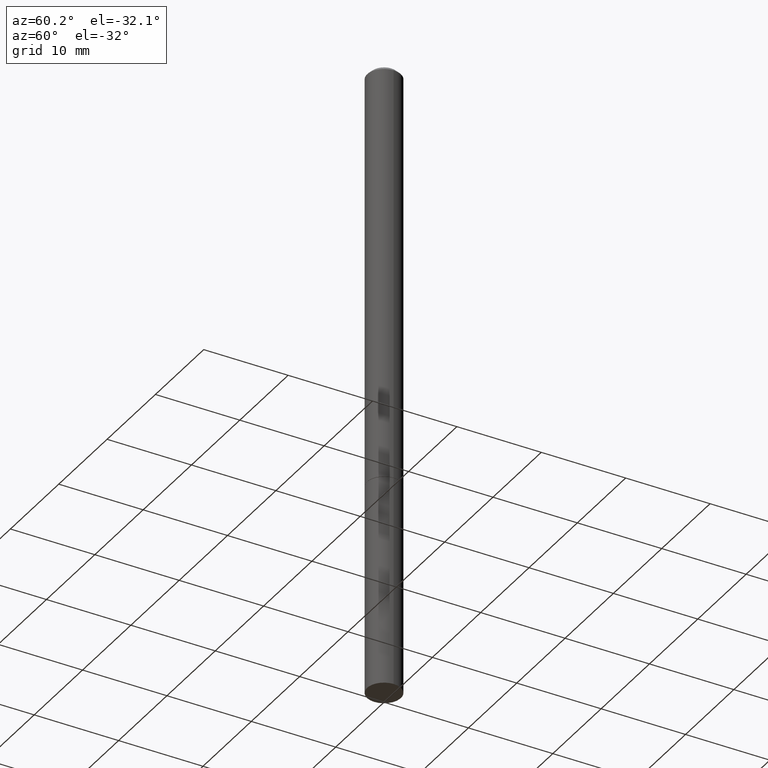
[diagram: clean part render]
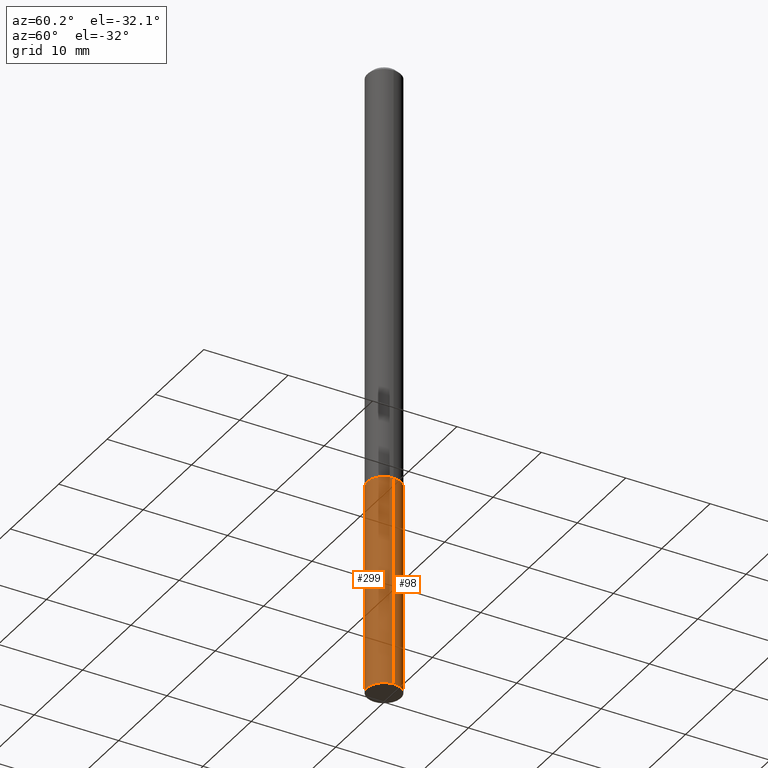
[diagram: same view with one multi-face feature highlighted, each face labeled with its STEP entity id]
A machine part, auxiliary view. The highlighted faces form ONE feature: a constant-radius fillet chain: 2 tangent blend faces with common blend radius 2.0002 mm. The faces share edges in the B-rep.
Their STEP definitions:
[1] entity #98 (Cylinder):
#1 = EDGE_LOOP ( 'NONE', ( #80, #179, #140, #161 ) ) ;
#10 = CARTESIAN_POINT ( 'NONE',  ( -0.07875000000000000056, 5.595524044110789003E-16, -3.873661383575737792E-30 ) ) ;
#12 = CARTESIAN_POINT ( 'NONE',  ( 4.813905344975440714E-29, -6.872981015512730918E-15, -1.968499999999999694 ) ) ;
#13 = DIRECTION ( 'NONE',  ( -2.445468806185136877E-29, 3.491481338843145188E-15, 1.000000000000000000 ) ) ;
#32 = DIRECTION ( 'NONE',  ( 1.000000000000000000, -6.982962677686265922E-15, 4.876176775795935232E-29 ) ) ;
#40 = CARTESIAN_POINT ( 'NONE',  ( -0.07875000000000000056, -8.031761152013305527E-15, -1.968499999999999694 ) ) ;
#55 = CIRCLE ( 'NONE', #358, 0.07875000000000000056 ) ;
#66 = CARTESIAN_POINT ( 'NONE',  ( -0.07875000000000000056, -8.031761152013305527E-15, -2.952799999999999869 ) ) ;
#71 = VECTOR ( 'NONE', #168, 39.37007874015748143 ) ;
#80 = ORIENTED_EDGE ( 'NONE', *, *, #197, .T. ) ;
#89 = DIRECTION ( 'NONE',  ( -2.445468806185136597E-29, 3.491481338843145583E-15, 1.000000000000000000 ) ) ;
#92 = DIRECTION ( 'NONE',  ( -2.445468806185136597E-29, 3.491481338843145583E-15, 1.000000000000000000 ) ) ;
#98 = ADVANCED_FACE ( 'NONE', ( #144 ), #117, .T. ) ;
#108 = VECTOR ( 'NONE', #13, 39.37007874015748143 ) ;
#111 = VERTEX_POINT ( 'NONE', #230 ) ;
#117 = CYLINDRICAL_SURFACE ( 'NONE', #166, 0.07875000000000000056 ) ;
#140 = ORIENTED_EDGE ( 'NONE', *, *, #349, .F. ) ;
#142 = CARTESIAN_POINT ( 'NONE',  ( 0.000000000000000000, 0.000000000000000000, 0.000000000000000000 ) ) ;
#144 = FACE_OUTER_BOUND ( 'NONE', #1, .T. ) ;
#148 = DIRECTION ( 'NONE',  ( 1.000000000000000000, -6.982962677686261977E-15, 0.000000000000000000 ) ) ;
#161 = ORIENTED_EDGE ( 'NONE', *, *, #285, .F. ) ;
#165 = VERTEX_POINT ( 'NONE', #198 ) ;
#166 = AXIS2_PLACEMENT_3D ( 'NONE', #142, #170, #32 ) ;
#168 = DIRECTION ( 'NONE',  ( -2.445468806185136877E-29, 3.491481338843145188E-15, 1.000000000000000000 ) ) ;
#170 = DIRECTION ( 'NONE',  ( -2.445468806185136597E-29, 3.491481338843145583E-15, 1.000000000000000000 ) ) ;
#171 = CIRCLE ( 'NONE', #191, 0.07875000000000000056 ) ;
#179 = ORIENTED_EDGE ( 'NONE', *, *, #237, .T. ) ;
#191 = AXIS2_PLACEMENT_3D ( 'NONE', #12, #92, #148 ) ;
#196 = DIRECTION ( 'NONE',  ( 1.000000000000000000, -6.982962677686261977E-15, 0.000000000000000000 ) ) ;
#197 = EDGE_CURVE ( 'NONE', #111, #226, #55, .T. ) ;
#198 = CARTESIAN_POINT ( 'NONE',  ( 0.07875000000000000056, -7.422889326380523475E-15, -1.968499999999999694 ) ) ;
#226 = VERTEX_POINT ( 'NONE', #66 ) ;
#230 = CARTESIAN_POINT ( 'NONE',  ( 0.07875000000000000056, -1.085955440820383187E-14, -2.952799999999999869 ) ) ;
#237 = EDGE_CURVE ( 'NONE', #226, #295, #264, .T. ) ;
#264 = LINE ( 'NONE', #10, #71 ) ;
#267 = LINE ( 'NONE', #350, #108 ) ;
#285 = EDGE_CURVE ( 'NONE', #111, #165, #267, .T. ) ;
#295 = VERTEX_POINT ( 'NONE', #40 ) ;
#345 = CARTESIAN_POINT ( 'NONE',  ( 7.220980290903470182E-29, -1.030964609733603853E-14, -2.952799999999999869 ) ) ;
#349 = EDGE_CURVE ( 'NONE', #165, #295, #171, .T. ) ;
#350 = CARTESIAN_POINT ( 'NONE',  ( 0.07875000000000000056, -5.499083108677934443E-16, 3.839989210939299016E-30 ) ) ;
#358 = AXIS2_PLACEMENT_3D ( 'NONE', #345, #89, #196 ) ;
[2] entity #299 (Cylinder):
#4 = DIRECTION ( 'NONE',  ( -2.445468806185136597E-29, 3.491481338843145583E-15, 1.000000000000000000 ) ) ;
#10 = CARTESIAN_POINT ( 'NONE',  ( -0.07875000000000000056, 5.595524044110789003E-16, -3.873661383575737792E-30 ) ) ;
#13 = DIRECTION ( 'NONE',  ( -2.445468806185136877E-29, 3.491481338843145188E-15, 1.000000000000000000 ) ) ;
#14 = DIRECTION ( 'NONE',  ( -2.445468806185136597E-29, 3.491481338843145583E-15, 1.000000000000000000 ) ) ;
#27 = EDGE_LOOP ( 'NONE', ( #149, #45, #297, #227 ) ) ;
#36 = CARTESIAN_POINT ( 'NONE',  ( 4.813905344975440714E-29, -6.872981015512730918E-15, -1.968499999999999694 ) ) ;
#40 = CARTESIAN_POINT ( 'NONE',  ( -0.07875000000000000056, -8.031761152013305527E-15, -1.968499999999999694 ) ) ;
#44 = DIRECTION ( 'NONE',  ( 1.000000000000000000, -6.982962677686265922E-15, 4.876176775795935232E-29 ) ) ;
#45 = ORIENTED_EDGE ( 'NONE', *, *, #221, .T. ) ;
#47 = CARTESIAN_POINT ( 'NONE',  ( 0.000000000000000000, 0.000000000000000000, 0.000000000000000000 ) ) ;
#66 = CARTESIAN_POINT ( 'NONE',  ( -0.07875000000000000056, -8.031761152013305527E-15, -2.952799999999999869 ) ) ;
#71 = VECTOR ( 'NONE', #168, 39.37007874015748143 ) ;
#108 = VECTOR ( 'NONE', #13, 39.37007874015748143 ) ;
#111 = VERTEX_POINT ( 'NONE', #230 ) ;
#116 = AXIS2_PLACEMENT_3D ( 'NONE', #47, #14, #44 ) ;
#143 = CARTESIAN_POINT ( 'NONE',  ( 7.220980290903470182E-29, -1.030964609733603853E-14, -2.952799999999999869 ) ) ;
#149 = ORIENTED_EDGE ( 'NONE', *, *, #237, .F. ) ;
#165 = VERTEX_POINT ( 'NONE', #198 ) ;
#168 = DIRECTION ( 'NONE',  ( -2.445468806185136877E-29, 3.491481338843145188E-15, 1.000000000000000000 ) ) ;
#169 = DIRECTION ( 'NONE',  ( 1.000000000000000000, -6.982962677686261977E-15, 0.000000000000000000 ) ) ;
#181 = CYLINDRICAL_SURFACE ( 'NONE', #116, 0.07875000000000000056 ) ;
#198 = CARTESIAN_POINT ( 'NONE',  ( 0.07875000000000000056, -7.422889326380523475E-15, -1.968499999999999694 ) ) ;
#200 = EDGE_CURVE ( 'NONE', #295, #165, #282, .T. ) ;
#208 = AXIS2_PLACEMENT_3D ( 'NONE', #36, #4, #169 ) ;
#221 = EDGE_CURVE ( 'NONE', #226, #111, #292, .T. ) ;
#226 = VERTEX_POINT ( 'NONE', #66 ) ;
#227 = ORIENTED_EDGE ( 'NONE', *, *, #200, .F. ) ;
#230 = CARTESIAN_POINT ( 'NONE',  ( 0.07875000000000000056, -1.085955440820383187E-14, -2.952799999999999869 ) ) ;
#237 = EDGE_CURVE ( 'NONE', #226, #295, #264, .T. ) ;
#239 = AXIS2_PLACEMENT_3D ( 'NONE', #143, #263, #258 ) ;
#240 = FACE_OUTER_BOUND ( 'NONE', #27, .T. ) ;
#258 = DIRECTION ( 'NONE',  ( 1.000000000000000000, -6.982962677686261977E-15, 0.000000000000000000 ) ) ;
#263 = DIRECTION ( 'NONE',  ( -2.445468806185136597E-29, 3.491481338843145583E-15, 1.000000000000000000 ) ) ;
#264 = LINE ( 'NONE', #10, #71 ) ;
#267 = LINE ( 'NONE', #350, #108 ) ;
#282 = CIRCLE ( 'NONE', #208, 0.07875000000000000056 ) ;
#285 = EDGE_CURVE ( 'NONE', #111, #165, #267, .T. ) ;
#292 = CIRCLE ( 'NONE', #239, 0.07875000000000000056 ) ;
#295 = VERTEX_POINT ( 'NONE', #40 ) ;
#297 = ORIENTED_EDGE ( 'NONE', *, *, #285, .T. ) ;
#299 = ADVANCED_FACE ( 'NONE', ( #240 ), #181, .T. ) ;
#350 = CARTESIAN_POINT ( 'NONE',  ( 0.07875000000000000056, -5.499083108677934443E-16, 3.839989210939299016E-30 ) ) ;